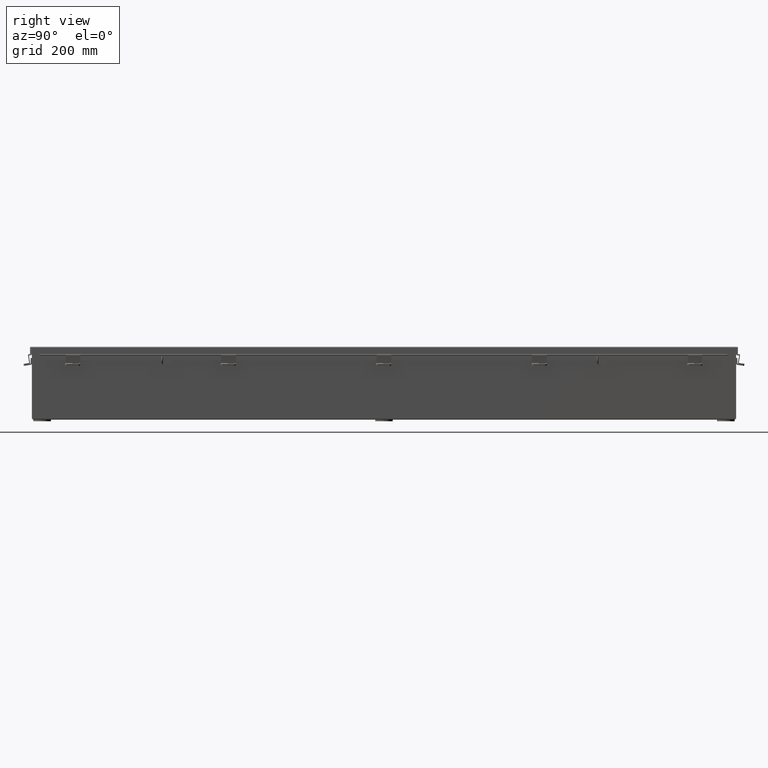
[diagram: clean part render]
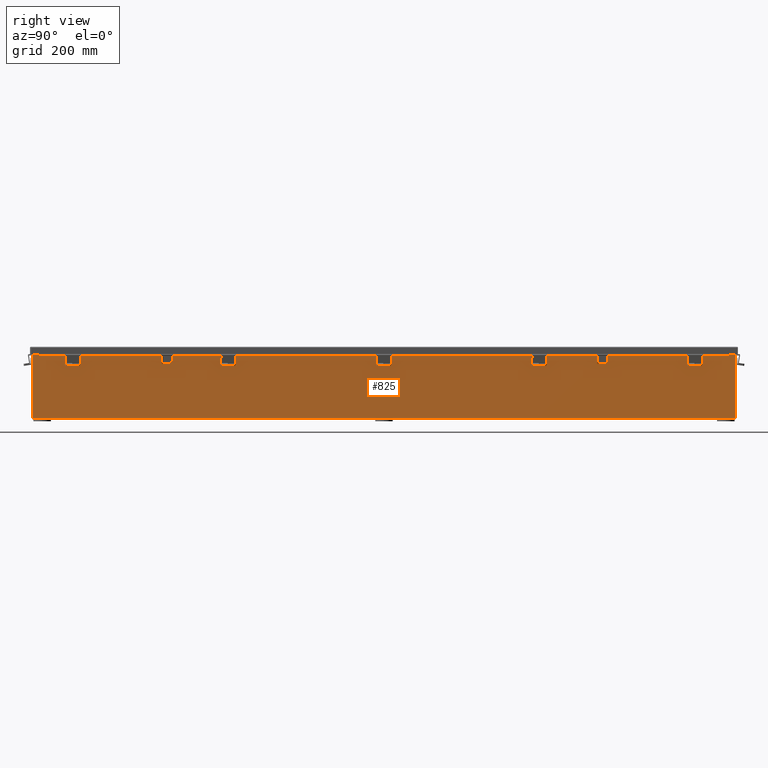
[diagram: same view with one face highlighted and labeled with its STEP entity id]
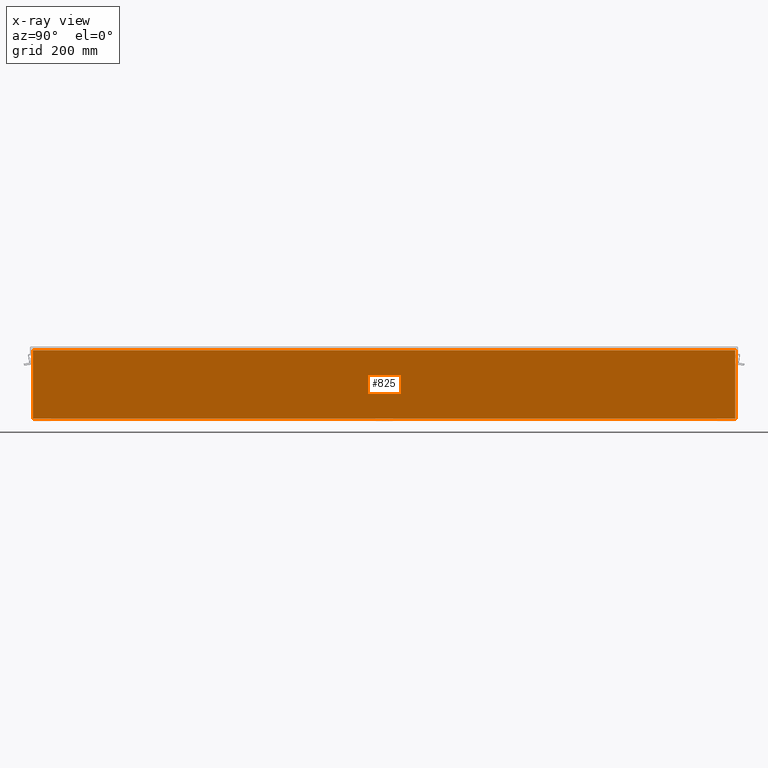
[diagram: x-ray of the same camera — body ghosted, the highlighted face saturated]
A machine part, right view. The second image highlights one B-rep face of the part: STEP entity #825.
The next image is the same camera in x-ray: the body ghosted, the highlighted face saturated — about 0% of this face is hidden behind the body in this view.
In plain terms, the highlighted planar face has unit normal (-1, 0, 0).
Its self-contained STEP definition (entity closure, byte-faithful):
#544 = PLANE ( 'NONE',  #12425 ) ;
#825 = ADVANCED_FACE ( 'NONE', ( #31858 ), #544, .F. ) ;
#1423 = LINE ( 'NONE', #25156, #9326 ) ;
#2102 = CARTESIAN_POINT ( 'NONE',  ( 3.000000000000023500, 29.92529999999997200, 5.837600000000000100 ) ) ;
#2367 = VECTOR ( 'NONE', #19482, 39.37007874015748100 ) ;
#3414 = VECTOR ( 'NONE', #35959, 39.37007874015748100 ) ;
#3910 = EDGE_CURVE ( 'NONE', #41705, #11952, #6583, .T. ) ;
#6583 = LINE ( 'NONE', #42868, #3414 ) ;
#7578 = CARTESIAN_POINT ( 'NONE',  ( 3.000000000000004000, 29.92529999999999300, 0.01300000000000202700 ) ) ;
#9326 = VECTOR ( 'NONE', #21939, 39.37007874015748100 ) ;
#9421 = VERTEX_POINT ( 'NONE', #7578 ) ;
#10820 = EDGE_CURVE ( 'NONE', #9421, #41705, #28165, .T. ) ;
#11952 = VERTEX_POINT ( 'NONE', #16440 ) ;
#12425 = AXIS2_PLACEMENT_3D ( 'NONE', #34227, #40998, #20864 ) ;
#14073 = EDGE_LOOP ( 'NONE', ( #15662, #20928, #22786, #36604 ) ) ;
#15135 = CARTESIAN_POINT ( 'NONE',  ( 3.000000000000004000, -29.92530000000001100, 0.01300000000000093600 ) ) ;
#15302 = DIRECTION ( 'NONE',  ( -3.455316574900959400E-015, 0.0000000000000000000, -1.000000000000000000 ) ) ;
#15429 = EDGE_CURVE ( 'NONE', #11952, #40890, #25234, .T. ) ;
#15662 = ORIENTED_EDGE ( 'NONE', *, *, #3910, .T. ) ;
#16440 = CARTESIAN_POINT ( 'NONE',  ( 3.000000000000024400, -29.92530000000000400, 5.837600000000000100 ) ) ;
#19482 = DIRECTION ( 'NONE',  ( 3.455316574900959400E-015, -1.494190951308523000E-015, 1.000000000000000000 ) ) ;
#20864 = DIRECTION ( 'NONE',  ( 3.455316574900958600E-015, 0.0000000000000000000, 1.000000000000000000 ) ) ;
#20928 = ORIENTED_EDGE ( 'NONE', *, *, #15429, .T. ) ;
#21939 = DIRECTION ( 'NONE',  ( -1.261728323875524600E-031, -1.000000000000000000, -3.651556366905947300E-017 ) ) ;
#22108 = CARTESIAN_POINT ( 'NONE',  ( 3.000000000000004000, -29.92530000000001100, -1.062859610035002400E-014 ) ) ;
#22786 = ORIENTED_EDGE ( 'NONE', *, *, #24068, .F. ) ;
#24068 = EDGE_CURVE ( 'NONE', #9421, #40890, #1423, .T. ) ;
#24195 = VECTOR ( 'NONE', #15302, 39.37007874015748100 ) ;
#25156 = CARTESIAN_POINT ( 'NONE',  ( 3.000000000000004000, -29.92530000000001100, 0.01299999999999984300 ) ) ;
#25234 = LINE ( 'NONE', #22108, #24195 ) ;
#28165 = LINE ( 'NONE', #39612, #2367 ) ;
#31858 = FACE_OUTER_BOUND ( 'NONE', #14073, .T. ) ;
#34227 = CARTESIAN_POINT ( 'NONE',  ( 3.000000000000004000, 0.0000000000000000000, -1.062859610035002400E-014 ) ) ;
#35959 = DIRECTION ( 'NONE',  ( -0.0000000000000000000, -1.000000000000000000, -0.0000000000000000000 ) ) ;
#36604 = ORIENTED_EDGE ( 'NONE', *, *, #10820, .T. ) ;
#39612 = CARTESIAN_POINT ( 'NONE',  ( 3.000000000000004000, 29.92529999999999300, 3.408834074594188500E-014 ) ) ;
#40890 = VERTEX_POINT ( 'NONE', #15135 ) ;
#40998 = DIRECTION ( 'NONE',  ( -1.000000000000000000, 0.0000000000000000000, 3.455316574900958600E-015 ) ) ;
#41705 = VERTEX_POINT ( 'NONE', #2102 ) ;
#42868 = CARTESIAN_POINT ( 'NONE',  ( 3.000000000000023500, 29.92529999999997900, 5.837600000000000100 ) ) ;